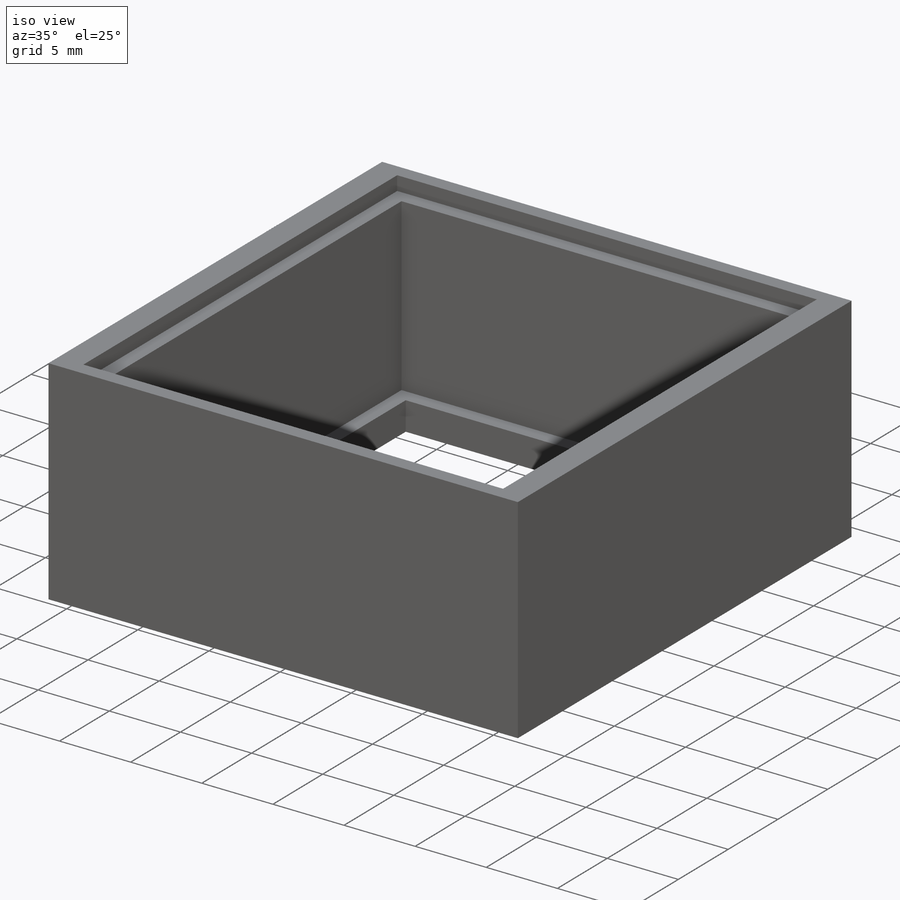
[diagram: iso view]
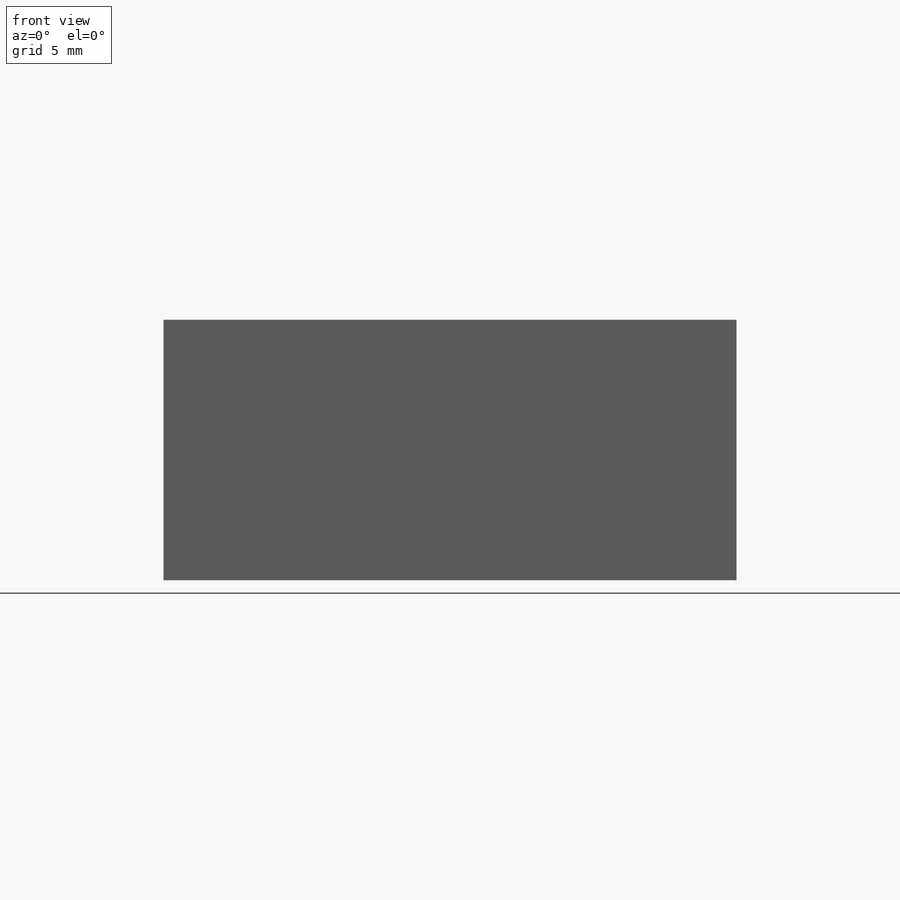
[diagram: front view]
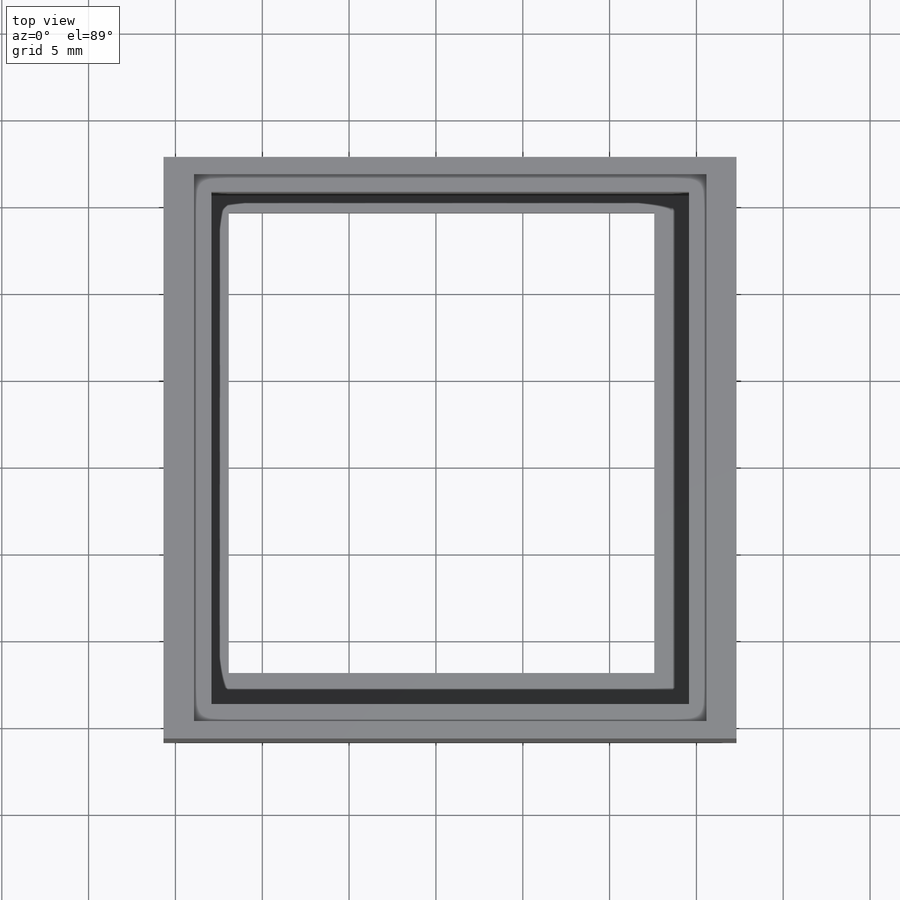
[diagram: top view]
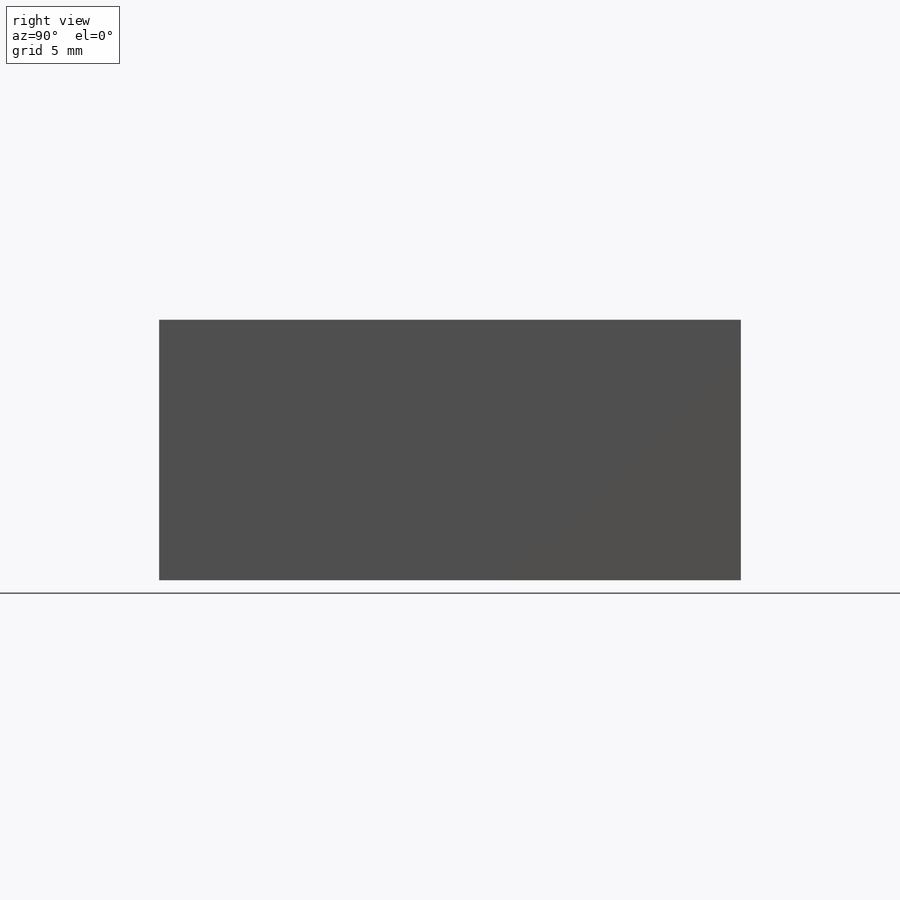
[diagram: right view]
SOLIDWORKS PART (.sldprt)
format: sldprt  version: not decoded by parser v0  size: 327,680 bytes
history: native  units: mm
features: sketch x8, extrude x7, plane x3, material x1, cut_extrude x1 (+10 scaffold rows collapsed)
feature tree (30):
  scaffold x10  (default folders/planes/origin — collapsed)
  material  "Материал <не указан>"
  plane  "Спереди"
  plane  "Сверху"
  plane  "Справа"
  sketch  "Эскиз1"  dims[c1.D1=~49.383235mm c1.D2=~92.714604mm c2.D1=~8.552372mm c2.D2=~8.992225mm c3.D1=4.0mm c3.D2=3.0mm c4.D1=4.0mm c4.D2=3.0mm c4.D3=6.0mm c4.D4=8.0mm c4.D5=33.0mm c5.D1=2.0mm c5.D2=2.0mm]
  extrude  "Бобышка-Вытянуть1"  Depth=15mm
  extrude  "Бобышка-Вытянуть2"  [1 undecoded]
  sketch  "Эскиз1<3>"  dims[D1=2.0mm]
  sketch  "Эскиз2"  dims[D1=1.0mm]
  cut_extrude  "Вырез-Вытянуть1"  Depth=1mm
  sketch  "Эскиз3"
  extrude  "Бобышка-Вытянуть3"  [1 undecoded]
  sketch  "Эскиз4"
  extrude  "Бобышка-Вытянуть4"  Depth=0.1mm
  sketch  "Эскиз5"
  extrude  "Бобышка-Вытянуть5"  [1 undecoded]
  sketch  "Эскиз6"
  extrude  "Бобышка-Вытянуть6"  [1 undecoded]
  extrude  "Бобышка-Вытянуть7"  [1 undecoded]
  sketch  "Эскиз6<3>"  dims[D1=0.1mm]
decode coverage: 7 of 16 modeling features carry decoded parameters
note: ~ marks probable driven/reference dimensions
note: 5 parameter values undecoded
summary: no parameter record found for 5 features
note: suppression state not decoded; provenance and decode notes live in map.json
